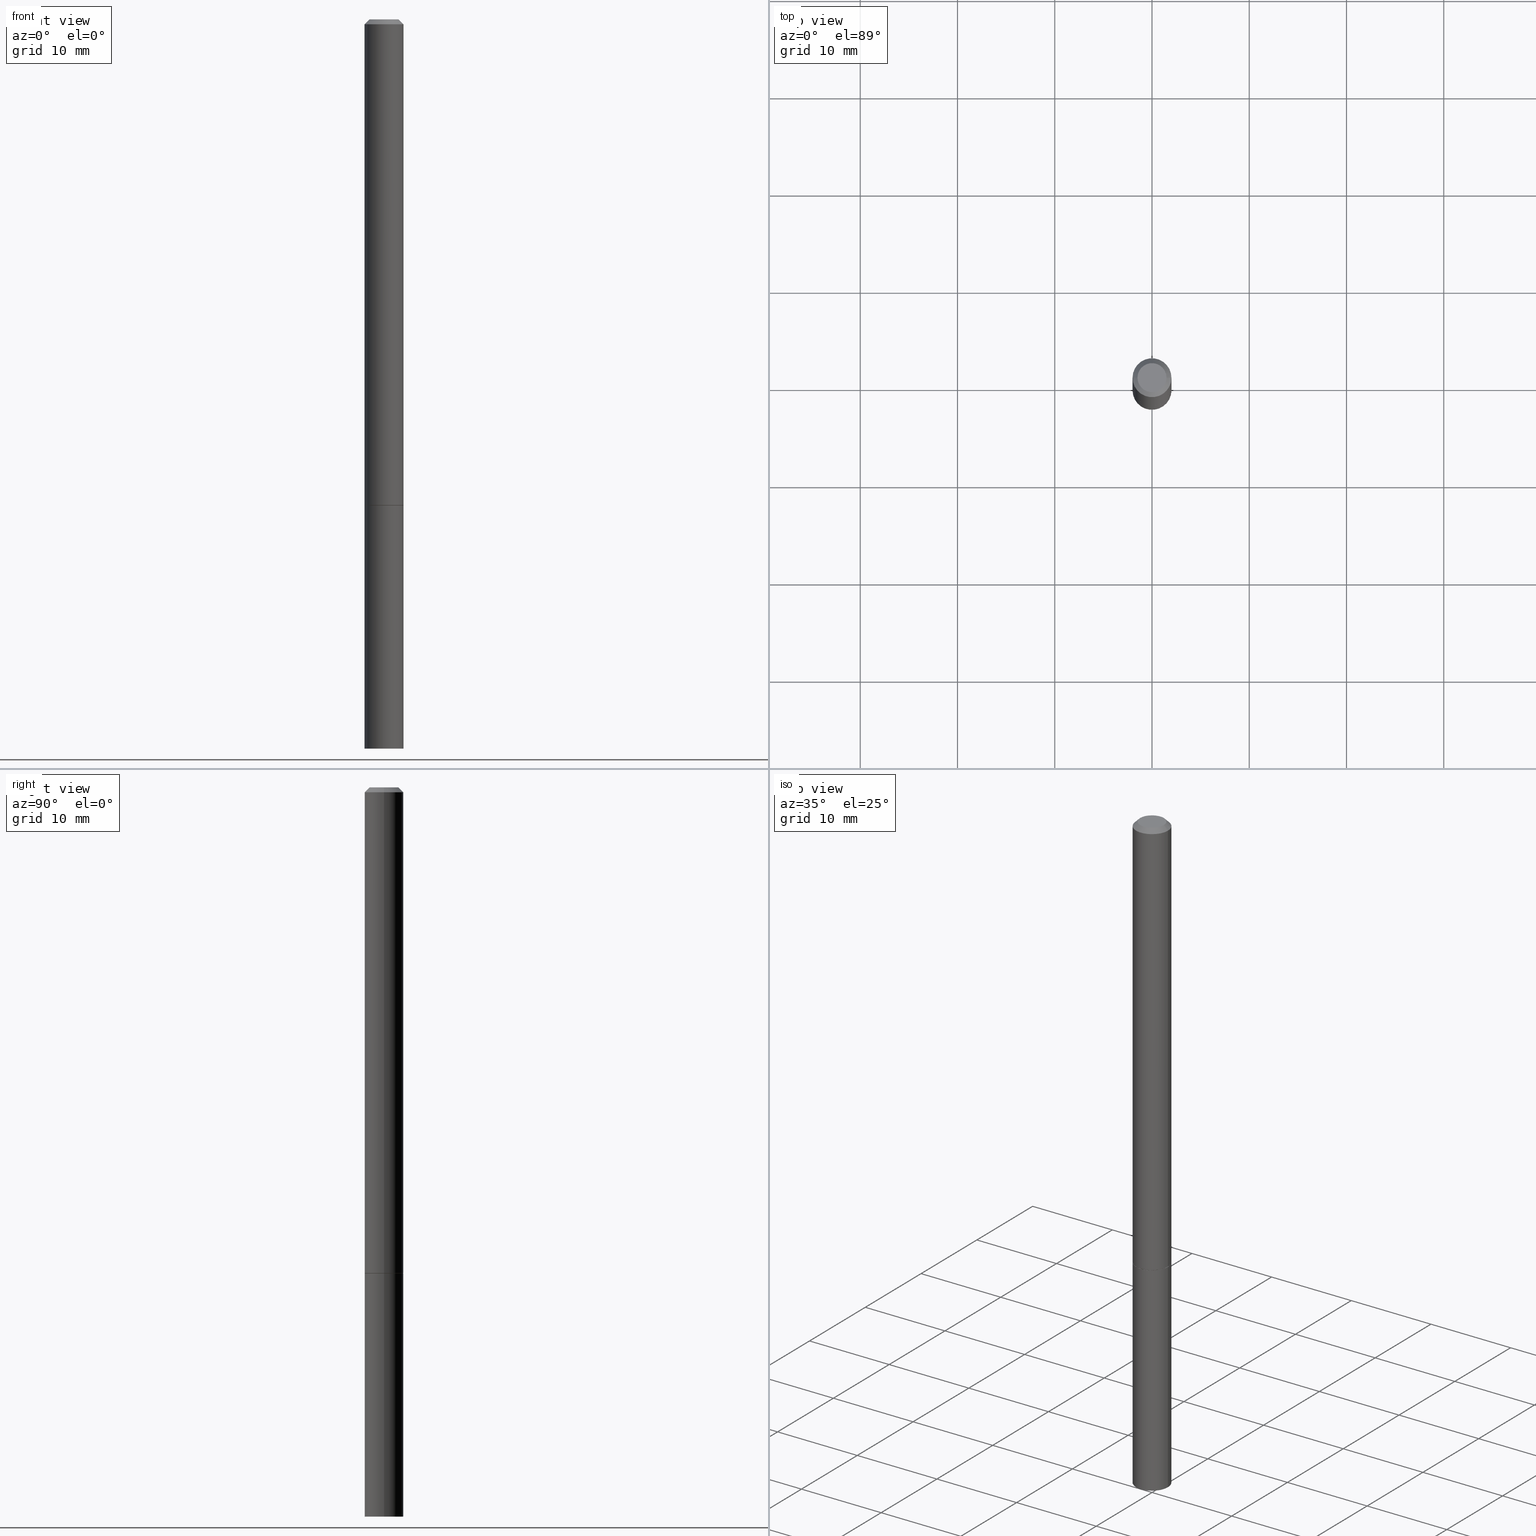
[diagram: canonical four-view strip — front | top / right | iso, engineering-drawing reading convention]
A machine part, canonical four-view strip (front | top / right | iso — engineering-drawing reading convention). The complete STEP part file that produces these views, byte-faithful:
ISO-10303-21;
HEADER;
FILE_DESCRIPTION (( 'STEP AP203' ),
    '1' );
FILE_NAME ('49389.STEP',
    '2024-02-28T18:27:34',
    ( '' ),
    ( '' ),
    'SwSTEP 2.0',
    'SolidWorks 2023',
    '' );
FILE_SCHEMA (( 'CONFIG_CONTROL_DESIGN' ));
ENDSEC;

DATA;
#1 = ORIENTED_EDGE ( 'NONE', *, *, #63, .T. ) ;
#2 = PRODUCT_DEFINITION ( 'UNKNOWN', '', #208, #248 ) ;
#3 = LOCAL_TIME ( 13, 27, 34.00000000000000000, #24 ) ;
#4 = PRODUCT ( '49389', '49389', '', ( #209 ) ) ;
#5 = LINE ( 'NONE', #341, #233 ) ;
#6 = ORIENTED_EDGE ( 'NONE', *, *, #177, .F. ) ;
#7 = DIRECTION ( 'NONE',  ( 1.000000000000000000, -6.982962677686266711E-15, 4.876176775795935793E-29 ) ) ;
#8 = DIRECTION ( 'NONE',  ( 1.000000000000000000, -6.982962677686261977E-15, 0.000000000000000000 ) ) ;
#9 = PLANE ( 'NONE',  #55 ) ;
#10 = ORIENTED_EDGE ( 'NONE', *, *, #339, .T. ) ;
#11 = CARTESIAN_POINT ( 'NONE',  ( 0.000000000000000000, 0.000000000000000000, 0.000000000000000000 ) ) ;
#12 = EDGE_LOOP ( 'NONE', ( #57, #247 ) ) ;
#13 = APPLICATION_CONTEXT ( 'configuration controlled 3d designs of mechanical parts and assemblies' ) ;
#14 = DIRECTION ( 'NONE',  ( -2.445468806185136597E-29, 3.491481338843145583E-15, 1.000000000000000000 ) ) ;
#15 = CARTESIAN_POINT ( 'NONE',  ( -0.07874999999999973688, 4.800786840909286670E-16, -0.02000000000000001776 ) ) ;
#16 = PLANE ( 'NONE',  #338 ) ;
#17 = APPROVAL_ROLE ( '' ) ;
#18 = EDGE_CURVE ( 'NONE', #108, #316, #27, .T. ) ;
#19 = AXIS2_PLACEMENT_3D ( 'NONE', #259, #112, #64 ) ;
#20 = CARTESIAN_POINT ( 'NONE',  ( -0.07874999999999987566, 5.595524044110780128E-16, -3.873661383575732186E-30 ) ) ;
#21 = LENGTH_MEASURE_WITH_UNIT ( LENGTH_MEASURE( 0.02539999999999999897 ), #58 );
#22 = CARTESIAN_POINT ( 'NONE',  ( 4.890937612370276662E-31, -6.982962677686296539E-17, -0.02000000000000001776 ) ) ;
#23 = PERSON_AND_ORGANIZATION_ROLE ( 'creator' ) ;
#24 = COORDINATED_UNIVERSAL_TIME_OFFSET ( 5, 0, .BEHIND. ) ;
#25 = AXIS2_PLACEMENT_3D ( 'NONE', #137, #293, #37 ) ;
#26 = VERTEX_POINT ( 'NONE', #65 ) ;
#27 = CIRCLE ( 'NONE', #251, 0.07875000000000000056 ) ;
#28 = DIMENSIONAL_EXPONENTS ( 1.000000000000000000, 0.000000000000000000, 0.000000000000000000, 0.000000000000000000, 0.000000000000000000, 0.000000000000000000, 0.000000000000000000 ) ;
#29 = DIRECTION ( 'NONE',  ( -2.445468806185136597E-29, 3.491481338843145583E-15, 1.000000000000000000 ) ) ;
#30 = EDGE_CURVE ( 'NONE', #349, #351, #139, .T. ) ;
#31 = DIRECTION ( 'NONE',  ( 2.438088387897960049E-29, -3.491481338843145188E-15, -1.000000000000000000 ) ) ;
#32 = DIRECTION ( 'NONE',  ( -2.445468806185136597E-29, 3.491481338843145583E-15, 1.000000000000000000 ) ) ;
#33 = SECURITY_CLASSIFICATION ( '', '', #309 ) ;
#34 = DIRECTION ( 'NONE',  ( -2.445468806185136597E-29, 3.491481338843145583E-15, 1.000000000000000000 ) ) ;
#35 = CARTESIAN_POINT ( 'NONE',  ( 4.811459876169255671E-29, -6.869489534173887122E-15, -1.967499999999999805 ) ) ;
#36 = CARTESIAN_POINT ( 'NONE',  ( 0.05874999999999978156, -5.065740507352227282E-16, 3.205406768517973136E-30 ) ) ;
#37 = DIRECTION ( 'NONE',  ( 1.000000000000000000, -6.982962677686261977E-15, 0.000000000000000000 ) ) ;
#38 = CARTESIAN_POINT ( 'NONE',  ( 4.813905344975440714E-29, -6.872981015512730918E-15, -1.968499999999999694 ) ) ;
#39 = EDGE_LOOP ( 'NONE', ( #258, #195, #312, #110 ) ) ;
#40 = DIRECTION ( 'NONE',  ( -1.000000000000000000, 6.982962677686266711E-15, 0.000000000000000000 ) ) ;
#41 = VECTOR ( 'NONE', #207, 39.37007874015748143 ) ;
#42 = DIRECTION ( 'NONE',  ( -2.445468806185136597E-29, 3.491481338843145583E-15, 1.000000000000000000 ) ) ;
#43 = DATE_TIME_ROLE ( 'classification_date' ) ;
#44 = DIRECTION ( 'NONE',  ( 1.000000000000000000, -6.982962677686265922E-15, 4.876176775795935232E-29 ) ) ;
#45 = CALENDAR_DATE ( 2024, 28, 2 ) ;
#46 = PLANE ( 'NONE',  #62 ) ;
#47 = APPLICATION_PROTOCOL_DEFINITION ( 'international standard', 'config_control_design', 1994, #300 ) ;
#48 = ORGANIZATION ( 'UNSPECIFIED', 'UNSPECIFIED', '' ) ;
#49 = DIRECTION ( 'NONE',  ( 2.445468806185136597E-29, -3.491481338843145583E-15, -1.000000000000000000 ) ) ;
#50 = PERSON_AND_ORGANIZATION_ROLE ( 'design_supplier' ) ;
#51 = CARTESIAN_POINT ( 'NONE',  ( 0.000000000000000000, 0.000000000000000000, 0.000000000000000000 ) ) ;
#52 = APPROVAL_PERSON_ORGANIZATION ( #153, #229, #189 ) ;
#53 = APPROVAL ( #303, 'UNSPECIFIED' ) ;
#54 = AXIS2_PLACEMENT_3D ( 'NONE', #205, #325, #212 ) ;
#55 = AXIS2_PLACEMENT_3D ( 'NONE', #286, #31, #350 ) ;
#56 = EDGE_CURVE ( 'NONE', #26, #343, #88, .T. ) ;
#57 = ORIENTED_EDGE ( 'NONE', *, *, #135, .F. ) ;
#58 =( LENGTH_UNIT ( ) NAMED_UNIT ( * ) SI_UNIT ( $, .METRE. ) );
#59 = ORIENTED_EDGE ( 'NONE', *, *, #123, .F. ) ;
#60 = DIRECTION ( 'NONE',  ( 1.000000000000000000, -6.982962677686265922E-15, 4.876176775795935793E-29 ) ) ;
#61 = ORIENTED_EDGE ( 'NONE', *, *, #63, .F. ) ;
#62 = AXIS2_PLACEMENT_3D ( 'NONE', #154, #132, #266 ) ;
#63 = EDGE_CURVE ( 'NONE', #340, #91, #314, .T. ) ;
#64 = DIRECTION ( 'NONE',  ( 1.000000000000000000, -6.982962677686265922E-15, 4.876176775795935232E-29 ) ) ;
#65 = CARTESIAN_POINT ( 'NONE',  ( -0.05874999999999978156, 4.451638707024976095E-16, -2.990994270918716287E-30 ) ) ;
#66 = CARTESIAN_POINT ( 'NONE',  ( 4.813905344975441835E-29, -6.872981015512731707E-15, -1.968500000000000139 ) ) ;
#67 = EDGE_LOOP ( 'NONE', ( #148, #146 ) ) ;
#68 = DIRECTION ( 'NONE',  ( 1.000000000000000000, -6.982962677686261977E-15, 0.000000000000000000 ) ) ;
#69 = DIRECTION ( 'NONE',  ( 1.000000000000000000, -6.982962677686266711E-15, 4.876176775795935793E-29 ) ) ;
#70 = CLOSED_SHELL ( 'NONE', ( #149, #94, #72, #253 ) ) ;
#71 = FACE_OUTER_BOUND ( 'NONE', #197, .T. ) ;
#72 = ADVANCED_FACE ( 'NONE', ( #304 ), #16, .F. ) ;
#73 = DIRECTION ( 'NONE',  ( 2.445468806185136597E-29, -3.491481338843145583E-15, -1.000000000000000000 ) ) ;
#74 = FACE_OUTER_BOUND ( 'NONE', #12, .T. ) ;
#75 = ADVANCED_FACE ( 'NONE', ( #243 ), #210, .T. ) ;
#76 = COORDINATED_UNIVERSAL_TIME_OFFSET ( 5, 0, .BEHIND. ) ;
#77 = CC_DESIGN_SECURITY_CLASSIFICATION ( #33, ( #208 ) ) ;
#78 = APPROVAL_DATE_TIME ( #332, #53 ) ;
#79 = EDGE_LOOP ( 'NONE', ( #61, #281 ) ) ;
#80 = AXIS2_PLACEMENT_3D ( 'NONE', #66, #114, #170 ) ;
#81 = ADVANCED_FACE ( 'NONE', ( #127 ), #307, .T. ) ;
#82 = EDGE_LOOP ( 'NONE', ( #315, #228, #118, #171 ) ) ;
#83 = ORIENTED_EDGE ( 'NONE', *, *, #336, .F. ) ;
#84 = DIRECTION ( 'NONE',  ( -2.445468806185136597E-29, 3.491481338843145583E-15, 1.000000000000000000 ) ) ;
#85 = ORIENTED_EDGE ( 'NONE', *, *, #342, .F. ) ;
#86 = PLANE ( 'NONE',  #264 ) ;
#87 = ORIENTED_EDGE ( 'NONE', *, *, #115, .T. ) ;
#88 = CIRCLE ( 'NONE', #96, 0.05874999999999978156 ) ;
#89 = VECTOR ( 'NONE', #143, 39.37007874015748143 ) ;
#90 = DIRECTION ( 'NONE',  ( 0.7071067811865464625, -7.319954787623252890E-15, -0.7071067811865485719 ) ) ;
#91 = VERTEX_POINT ( 'NONE', #236 ) ;
#92 = DIRECTION ( 'NONE',  ( -2.445468806185136877E-29, 3.491481338843145188E-15, 1.000000000000000000 ) ) ;
#93 = DIRECTION ( 'NONE',  ( -1.000000000000000000, 6.982962677686266711E-15, 0.000000000000000000 ) ) ;
#94 = ADVANCED_FACE ( 'NONE', ( #74 ), #46, .T. ) ;
#95 = FACE_OUTER_BOUND ( 'NONE', #109, .T. ) ;
#96 = AXIS2_PLACEMENT_3D ( 'NONE', #285, #29, #175 ) ;
#97 =( CONVERSION_BASED_UNIT ( 'INCH', #21 ) LENGTH_UNIT ( ) NAMED_UNIT ( #28 ) );
#98 = CONICAL_SURFACE ( 'NONE', #222, 0.07874999999999973688, 0.7853981633974468357 ) ;
#99 = CARTESIAN_POINT ( 'NONE',  ( 4.890937612370276662E-31, -6.982962677686296539E-17, -0.02000000000000001776 ) ) ;
#100 = APPROVAL_DATE_TIME ( #102, #311 ) ;
#101 = DIRECTION ( 'NONE',  ( -2.445468806185136597E-29, 3.491481338843145583E-15, 1.000000000000000000 ) ) ;
#102 = DATE_AND_TIME ( #362, #313 ) ;
#103 = FACE_OUTER_BOUND ( 'NONE', #39, .T. ) ;
#104 = DATE_AND_TIME ( #246, #3 ) ;
#105 = PERSON_AND_ORGANIZATION_ROLE ( 'creator' ) ;
#106 = ORIENTED_EDGE ( 'NONE', *, *, #123, .T. ) ;
#107 = CC_DESIGN_DATE_AND_TIME_ASSIGNMENT ( #104, #218, ( #2 ) ) ;
#108 = VERTEX_POINT ( 'NONE', #270 ) ;
#109 = EDGE_LOOP ( 'NONE', ( #178, #337, #10, #290 ) ) ;
#110 = ORIENTED_EDGE ( 'NONE', *, *, #169, .F. ) ;
#111 = CONICAL_SURFACE ( 'NONE', #191, 0.07774999999999999967, 0.7853981633972775267 ) ;
#112 = DIRECTION ( 'NONE',  ( -2.445468806185136597E-29, 3.491481338843145583E-15, 1.000000000000000000 ) ) ;
#113 = ORIENTED_EDGE ( 'NONE', *, *, #56, .T. ) ;
#114 = DIRECTION ( 'NONE',  ( -2.445468806185136597E-29, 3.491481338843145583E-15, 1.000000000000000000 ) ) ;
#115 = EDGE_CURVE ( 'NONE', #91, #108, #356, .T. ) ;
#116 = VERTEX_POINT ( 'NONE', #156 ) ;
#117 = DIRECTION ( 'NONE',  ( -2.445468806185136597E-29, 3.491481338843145583E-15, 1.000000000000000000 ) ) ;
#118 = ORIENTED_EDGE ( 'NONE', *, *, #238, .T. ) ;
#119 = VECTOR ( 'NONE', #302, 39.37007874015748143 ) ;
#120 = LINE ( 'NONE', #234, #89 ) ;
#121 = ORIENTED_EDGE ( 'NONE', *, *, #342, .T. ) ;
#122 = PERSON ( 'UNSPECIFIED', 'UNSPECIFIED', 'UNSPECIFIED', ('UNSPECIFIED'), ('UNSPECIFIED'), ('UNSPECIFIED') ) ;
#123 = EDGE_CURVE ( 'NONE', #26, #321, #239, .T. ) ;
#124 = DIRECTION ( 'NONE',  ( -2.438088387897960049E-29, 3.491481338843145188E-15, 1.000000000000000000 ) ) ;
#125 = DIRECTION ( 'NONE',  ( -1.000000000000000000, 6.982962677686265922E-15, -4.876176775795935793E-29 ) ) ;
#126 = PERSON_AND_ORGANIZATION ( #122, #48 ) ;
#127 = FACE_OUTER_BOUND ( 'NONE', #318, .T. ) ;
#128 = AXIS2_PLACEMENT_3D ( 'NONE', #144, #32, #8 ) ;
#129 = CONICAL_SURFACE ( 'NONE', #289, 0.07774999999999999967, 0.7853981633972775267 ) ;
#130 = CARTESIAN_POINT ( 'NONE',  ( 0.07875000000000000056, -1.085955440820383187E-14, -2.952799999999999869 ) ) ;
#131 = PERSON_AND_ORGANIZATION ( #122, #48 ) ;
#132 = DIRECTION ( 'NONE',  ( 2.438088387897960049E-29, -3.491481338843145188E-15, -1.000000000000000000 ) ) ;
#133 = DIRECTION ( 'NONE',  ( 0.000000000000000000, 0.000000000000000000, 1.000000000000000000 ) ) ;
#134 = EDGE_CURVE ( 'NONE', #108, #321, #159, .T. ) ;
#135 = EDGE_CURVE ( 'NONE', #140, #254, #215, .T. ) ;
#136 = LOCAL_TIME ( 13, 27, 34.00000000000000000, #277 ) ;
#137 = CARTESIAN_POINT ( 'NONE',  ( 4.813905344975441835E-29, -6.872981015512731707E-15, -1.968500000000000139 ) ) ;
#138 = CYLINDRICAL_SURFACE ( 'NONE', #19, 0.07875000000000000056 ) ;
#139 = CIRCLE ( 'NONE', #128, 0.07875000000000000056 ) ;
#140 = VERTEX_POINT ( 'NONE', #130 ) ;
#141 = CC_DESIGN_APPROVAL ( #311, ( #2 ) ) ;
#142 = CC_DESIGN_APPROVAL ( #229, ( #33 ) ) ;
#143 = DIRECTION ( 'NONE',  ( -2.445468806185136877E-29, 3.491481338843145188E-15, 1.000000000000000000 ) ) ;
#144 = CARTESIAN_POINT ( 'NONE',  ( 4.813905344975440714E-29, -6.872981015512730918E-15, -1.968499999999999694 ) ) ;
#145 = DIRECTION ( 'NONE',  ( -2.445468806185136597E-29, 3.491481338843145583E-15, 1.000000000000000000 ) ) ;
#146 = ORIENTED_EDGE ( 'NONE', *, *, #249, .T. ) ;
#147 = CARTESIAN_POINT ( 'NONE',  ( 4.813905344975441835E-29, -6.872981015512731707E-15, -1.968500000000000139 ) ) ;
#148 = ORIENTED_EDGE ( 'NONE', *, *, #30, .T. ) ;
#149 = ADVANCED_FACE ( 'NONE', ( #103 ), #241, .T. ) ;
#150 = AXIS2_PLACEMENT_3D ( 'NONE', #324, #145, #68 ) ;
#151 = CARTESIAN_POINT ( 'NONE',  ( 0.07874999999999973688, -6.100938441013694129E-16, -0.02000000000000001776 ) ) ;
#152 = DIRECTION ( 'NONE',  ( -2.445468806185136597E-29, 3.491481338843145583E-15, 1.000000000000000000 ) ) ;
#153 = PERSON_AND_ORGANIZATION ( #122, #48 ) ;
#154 = CARTESIAN_POINT ( 'NONE',  ( 5.499083108678655265E-16, 0.07874999999998968936, -2.952800000000000313 ) ) ;
#155 = PERSON_AND_ORGANIZATION_ROLE ( 'classification_officer' ) ;
#156 = CARTESIAN_POINT ( 'NONE',  ( 0.07874999999999973688, -6.100938441013694129E-16, -0.02000000000000001776 ) ) ;
#157 = LOCAL_TIME ( 13, 27, 34.00000000000000000, #364 ) ;
#158 = PERSON_AND_ORGANIZATION_ROLE ( 'design_owner' ) ;
#159 = LINE ( 'NONE', #20, #333 ) ;
#160 = PERSON_AND_ORGANIZATION ( #122, #48 ) ;
#161 = ADVANCED_FACE ( 'NONE', ( #95 ), #276, .T. ) ;
#162 = MANIFOLD_SOLID_BREP ( 'Body-Move/Copy2[1]', #70 ) ;
#163 = AXIS2_PLACEMENT_3D ( 'NONE', #51, #133, #244 ) ;
#164 = PRODUCT_RELATED_PRODUCT_CATEGORY ( 'detail', '', ( #4 ) ) ;
#165 = SHAPE_DEFINITION_REPRESENTATION ( #173, #271 ) ;
#166 = DIRECTION ( 'NONE',  ( 1.000000000000000000, -6.982962677686261977E-15, 0.000000000000000000 ) ) ;
#167 = CARTESIAN_POINT ( 'NONE',  ( 4.813905344975441835E-29, -6.872981015512731707E-15, -1.968500000000000139 ) ) ;
#168 = ORIENTED_EDGE ( 'NONE', *, *, #336, .T. ) ;
#169 = EDGE_CURVE ( 'NONE', #140, #349, #180, .T. ) ;
#170 = DIRECTION ( 'NONE',  ( 1.000000000000000000, -6.982962677686261977E-15, 0.000000000000000000 ) ) ;
#171 = ORIENTED_EDGE ( 'NONE', *, *, #18, .F. ) ;
#172 = VECTOR ( 'NONE', #265, 39.37007874015748143 ) ;
#173 = PRODUCT_DEFINITION_SHAPE ( 'NONE', 'NONE',  #2 ) ;
#174 = DIRECTION ( 'NONE',  ( 1.000000000000000000, -6.982962677686261977E-15, 0.000000000000000000 ) ) ;
#175 = DIRECTION ( 'NONE',  ( 1.000000000000000000, -6.982962677686266711E-15, 4.876176775795935793E-29 ) ) ;
#176 = FACE_OUTER_BOUND ( 'NONE', #256, .T. ) ;
#177 = EDGE_CURVE ( 'NONE', #116, #321, #219, .T. ) ;
#178 = ORIENTED_EDGE ( 'NONE', *, *, #134, .F. ) ;
#179 = CARTESIAN_POINT ( 'NONE',  ( 4.813905344975441835E-29, -6.872981015512731707E-15, -1.968500000000000139 ) ) ;
#180 = LINE ( 'NONE', #297, #41 ) ;
#181 = CIRCLE ( 'NONE', #245, 0.07875000000000000056 ) ;
#182 = CARTESIAN_POINT ( 'NONE',  ( 4.890937612370276662E-31, -6.982962677686296539E-17, -0.02000000000000001776 ) ) ;
#183 = PERSON_AND_ORGANIZATION ( #122, #48 ) ;
#184 = CARTESIAN_POINT ( 'NONE',  ( 5.499083108678415648E-16, 0.07874999999999311717, -1.968500000000000139 ) ) ;
#185 = ADVANCED_FACE ( 'NONE', ( #71 ), #98, .T. ) ;
#186 = DATE_AND_TIME ( #45, #136 ) ;
#187 = CARTESIAN_POINT ( 'NONE',  ( -0.07774999999999999967, -6.320534038459253914E-15, -1.968500000000000139 ) ) ;
#188 = CC_DESIGN_APPROVAL ( #53, ( #208 ) ) ;
#189 = APPROVAL_ROLE ( '' ) ;
#190 = EDGE_CURVE ( 'NONE', #91, #340, #273, .T. ) ;
#191 = AXIS2_PLACEMENT_3D ( 'NONE', #167, #117, #227 ) ;
#192 = CC_DESIGN_PERSON_AND_ORGANIZATION_ASSIGNMENT ( #183, #23, ( #2 ) ) ;
#193 =( GEOMETRIC_REPRESENTATION_CONTEXT ( 3 ) GLOBAL_UNCERTAINTY_ASSIGNED_CONTEXT ( ( #226 ) ) GLOBAL_UNIT_ASSIGNED_CONTEXT ( ( #97, #242, #211 ) ) REPRESENTATION_CONTEXT ( 'NONE', 'WORKASPACE' ) );
#194 = ORIENTED_EDGE ( 'NONE', *, *, #275, .T. ) ;
#195 = ORIENTED_EDGE ( 'NONE', *, *, #284, .T. ) ;
#196 = DIRECTION ( 'NONE',  ( -2.445468806185136597E-29, 3.491481338843145583E-15, 1.000000000000000000 ) ) ;
#197 = EDGE_LOOP ( 'NONE', ( #83, #225, #250, #59 ) ) ;
#198 = LINE ( 'NONE', #202, #172 ) ;
#199 = ORIENTED_EDGE ( 'NONE', *, *, #339, .F. ) ;
#200 = APPROVAL_PERSON_ORGANIZATION ( #131, #311, #17 ) ;
#201 = CC_DESIGN_PERSON_AND_ORGANIZATION_ASSIGNMENT ( #160, #155, ( #33 ) ) ;
#202 = CARTESIAN_POINT ( 'NONE',  ( 0.07774999999999999967, -7.415906363702839039E-15, -1.968500000000000139 ) ) ;
#203 = ORIENTED_EDGE ( 'NONE', *, *, #284, .F. ) ;
#204 = CARTESIAN_POINT ( 'NONE',  ( -0.07875000000000000056, -8.031761152013305527E-15, -1.968499999999999694 ) ) ;
#205 = CARTESIAN_POINT ( 'NONE',  ( 0.000000000000000000, 0.000000000000000000, 0.000000000000000000 ) ) ;
#206 = CARTESIAN_POINT ( 'NONE',  ( 4.890937612370276662E-31, -6.982962677686296539E-17, -0.02000000000000001776 ) ) ;
#207 = DIRECTION ( 'NONE',  ( -2.445468806185136877E-29, 3.491481338843145188E-15, 1.000000000000000000 ) ) ;
#208 = PRODUCT_DEFINITION_FORMATION_WITH_SPECIFIED_SOURCE ( 'ANY', '', #4, .NOT_KNOWN. ) ;
#209 = MECHANICAL_CONTEXT ( 'NONE', #13, 'mechanical' ) ;
#210 = CYLINDRICAL_SURFACE ( 'NONE', #54, 0.07874999999999987566 ) ;
#211 =( NAMED_UNIT ( * ) SI_UNIT ( $, .STERADIAN. ) SOLID_ANGLE_UNIT ( ) );
#212 = DIRECTION ( 'NONE',  ( 1.000000000000000000, -6.982962677686266711E-15, 4.876176775795935793E-29 ) ) ;
#213 = APPROVAL_STATUS ( 'not_yet_approved' ) ;
#214 = CARTESIAN_POINT ( 'NONE',  ( 0.000000000000000000, 0.000000000000000000, 0.000000000000000000 ) ) ;
#215 = CIRCLE ( 'NONE', #262, 0.07875000000000000056 ) ;
#216 = EDGE_CURVE ( 'NONE', #343, #116, #296, .T. ) ;
#217 = AXIS2_PLACEMENT_3D ( 'NONE', #306, #269, #44 ) ;
#218 = DATE_TIME_ROLE ( 'creation_date' ) ;
#219 = CIRCLE ( 'NONE', #355, 0.07874999999999973688 ) ;
#220 = CC_DESIGN_PERSON_AND_ORGANIZATION_ASSIGNMENT ( #301, #50, ( #208 ) ) ;
#221 = ADVANCED_FACE ( 'NONE', ( #347 ), #9, .F. ) ;
#222 = AXIS2_PLACEMENT_3D ( 'NONE', #182, #73, #40 ) ;
#223 = ORIENTED_EDGE ( 'NONE', *, *, #169, .T. ) ;
#224 = CARTESIAN_POINT ( 'NONE',  ( -0.07875000000000000056, -8.031761152013305527E-15, -2.952799999999999869 ) ) ;
#225 = ORIENTED_EDGE ( 'NONE', *, *, #216, .T. ) ;
#226 = UNCERTAINTY_MEASURE_WITH_UNIT (LENGTH_MEASURE( 1.000000000000000082E-05 ), #97, 'distance_accuracy_value', 'NONE');
#227 = DIRECTION ( 'NONE',  ( 1.000000000000000000, -6.982962677686261977E-15, 0.000000000000000000 ) ) ;
#228 = ORIENTED_EDGE ( 'NONE', *, *, #190, .T. ) ;
#229 = APPROVAL ( #213, 'UNSPECIFIED' ) ;
#230 = CARTESIAN_POINT ( 'NONE',  ( 0.07875000000000000056, -7.422889326380523475E-15, -1.968499999999999694 ) ) ;
#231 = VECTOR ( 'NONE', #329, 39.37007874015748143 ) ;
#232 = ORIENTED_EDGE ( 'NONE', *, *, #363, .T. ) ;
#233 = VECTOR ( 'NONE', #92, 39.37007874015748143 ) ;
#234 = CARTESIAN_POINT ( 'NONE',  ( 0.07874999999999987566, -5.499083108677926554E-16, 3.839989210939293411E-30 ) ) ;
#235 = ORIENTED_EDGE ( 'NONE', *, *, #134, .T. ) ;
#236 = CARTESIAN_POINT ( 'NONE',  ( -0.07774999999999999967, -6.315235584111030723E-15, -1.968500000000000139 ) ) ;
#237 = COORDINATED_UNIVERSAL_TIME_OFFSET ( 5, 0, .BEHIND. ) ;
#238 = EDGE_CURVE ( 'NONE', #340, #316, #198, .T. ) ;
#239 = LINE ( 'NONE', #15, #119 ) ;
#240 = VECTOR ( 'NONE', #90, 39.37007874015748143 ) ;
#241 = CYLINDRICAL_SURFACE ( 'NONE', #217, 0.07875000000000000056 ) ;
#242 =( NAMED_UNIT ( * ) PLANE_ANGLE_UNIT ( ) SI_UNIT ( $, .RADIAN. ) );
#243 = FACE_OUTER_BOUND ( 'NONE', #310, .T. ) ;
#244 = DIRECTION ( 'NONE',  ( 1.000000000000000000, 0.000000000000000000, 0.000000000000000000 ) ) ;
#245 = AXIS2_PLACEMENT_3D ( 'NONE', #38, #196, #291 ) ;
#246 = CALENDAR_DATE ( 2024, 28, 2 ) ;
#247 = ORIENTED_EDGE ( 'NONE', *, *, #363, .F. ) ;
#248 = DESIGN_CONTEXT ( 'detailed design', #300, 'design' ) ;
#249 = EDGE_CURVE ( 'NONE', #351, #349, #181, .T. ) ;
#250 = ORIENTED_EDGE ( 'NONE', *, *, #177, .T. ) ;
#251 = AXIS2_PLACEMENT_3D ( 'NONE', #35, #295, #166 ) ;
#252 = LOCAL_TIME ( 13, 27, 34.00000000000000000, #76 ) ;
#253 = ADVANCED_FACE ( 'NONE', ( #176 ), #138, .T. ) ;
#254 = VERTEX_POINT ( 'NONE', #224 ) ;
#255 = FACE_OUTER_BOUND ( 'NONE', #287, .T. ) ;
#256 = EDGE_LOOP ( 'NONE', ( #203, #232, #223, #263 ) ) ;
#257 = CARTESIAN_POINT ( 'NONE',  ( 0.07774999999999999967, -7.415906363702839039E-15, -1.968500000000000139 ) ) ;
#258 = ORIENTED_EDGE ( 'NONE', *, *, #135, .T. ) ;
#259 = CARTESIAN_POINT ( 'NONE',  ( 0.000000000000000000, 0.000000000000000000, 0.000000000000000000 ) ) ;
#260 = EDGE_LOOP ( 'NONE', ( #113, #168 ) ) ;
#261 = DIRECTION ( 'NONE',  ( 1.000000000000000000, -6.982962677686261977E-15, 0.000000000000000000 ) ) ;
#262 = AXIS2_PLACEMENT_3D ( 'NONE', #358, #101, #353 ) ;
#263 = ORIENTED_EDGE ( 'NONE', *, *, #249, .F. ) ;
#264 = AXIS2_PLACEMENT_3D ( 'NONE', #147, #124, #60 ) ;
#265 = DIRECTION ( 'NONE',  ( 0.7071067811864267805, -2.468850131080992517E-15, 0.7071067811866682540 ) ) ;
#266 = DIRECTION ( 'NONE',  ( -1.000000000000000000, 6.982962677686265922E-15, -4.876176775795935793E-29 ) ) ;
#267 = ADVANCED_FACE ( 'NONE', ( #322 ), #111, .T. ) ;
#268 = PERSON_AND_ORGANIZATION ( #122, #48 ) ;
#269 = DIRECTION ( 'NONE',  ( -2.445468806185136597E-29, 3.491481338843145583E-15, 1.000000000000000000 ) ) ;
#270 = CARTESIAN_POINT ( 'NONE',  ( -0.07875000000000000056, -2.910107176064290492E-15, -1.967499999999999805 ) ) ;
#271 = ADVANCED_BREP_SHAPE_REPRESENTATION ( '49389', ( #162, #292, #163 ), #193 ) ;
#272 = CLOSED_SHELL ( 'NONE', ( #280, #75, #185, #81, #161, #267, #298, #221 ) ) ;
#273 = CIRCLE ( 'NONE', #80, 0.07774999999999999967 ) ;
#274 = APPROVAL_ROLE ( '' ) ;
#275 = EDGE_CURVE ( 'NONE', #321, #116, #334, .T. ) ;
#276 = CYLINDRICAL_SURFACE ( 'NONE', #328, 0.07874999999999987566 ) ;
#277 = COORDINATED_UNIVERSAL_TIME_OFFSET ( 5, 0, .BEHIND. ) ;
#278 = APPLICATION_PROTOCOL_DEFINITION ( 'international standard', 'config_control_design', 1994, #13 ) ;
#279 = CIRCLE ( 'NONE', #299, 0.07875000000000000056 ) ;
#280 = ADVANCED_FACE ( 'NONE', ( #255 ), #129, .T. ) ;
#281 = ORIENTED_EDGE ( 'NONE', *, *, #190, .F. ) ;
#282 = APPROVAL_DATE_TIME ( #186, #229 ) ;
#283 = CIRCLE ( 'NONE', #320, 0.05874999999999978156 ) ;
#284 = EDGE_CURVE ( 'NONE', #254, #351, #5, .T. ) ;
#285 = CARTESIAN_POINT ( 'NONE',  ( 0.000000000000000000, 0.000000000000000000, 0.000000000000000000 ) ) ;
#286 = CARTESIAN_POINT ( 'NONE',  ( 4.102490573140666014E-16, 0.05874999999999978156, -2.051245286570340649E-16 ) ) ;
#287 = EDGE_LOOP ( 'NONE', ( #1, #87, #85, #365 ) ) ;
#288 = CARTESIAN_POINT ( 'NONE',  ( 0.07875000000000000056, -7.419397845041680468E-15, -1.967499999999999805 ) ) ;
#289 = AXIS2_PLACEMENT_3D ( 'NONE', #179, #14, #261 ) ;
#290 = ORIENTED_EDGE ( 'NONE', *, *, #275, .F. ) ;
#291 = DIRECTION ( 'NONE',  ( 1.000000000000000000, -6.982962677686261977E-15, 0.000000000000000000 ) ) ;
#292 = MANIFOLD_SOLID_BREP ( 'Body-Move/Copy2[2]', #272 ) ;
#293 = DIRECTION ( 'NONE',  ( -2.445468806185136597E-29, 3.491481338843145583E-15, 1.000000000000000000 ) ) ;
#294 = DIRECTION ( 'NONE',  ( 1.000000000000000000, -6.982962677686266711E-15, 0.000000000000000000 ) ) ;
#295 = DIRECTION ( 'NONE',  ( -2.445468806185136597E-29, 3.491481338843145583E-15, 1.000000000000000000 ) ) ;
#296 = LINE ( 'NONE', #151, #240 ) ;
#297 = CARTESIAN_POINT ( 'NONE',  ( 0.07875000000000000056, -5.499083108677934443E-16, 3.839989210939299016E-30 ) ) ;
#298 = ADVANCED_FACE ( 'NONE', ( #317 ), #86, .F. ) ;
#299 = AXIS2_PLACEMENT_3D ( 'NONE', #344, #319, #174 ) ;
#300 = APPLICATION_CONTEXT ( 'configuration controlled 3d designs of mechanical parts and assemblies' ) ;
#301 = PERSON_AND_ORGANIZATION ( #122, #48 ) ;
#302 = DIRECTION ( 'NONE',  ( -0.7071067811865464625, 2.468850131082245622E-15, -0.7071067811865485719 ) ) ;
#303 = APPROVAL_STATUS ( 'not_yet_approved' ) ;
#304 = FACE_OUTER_BOUND ( 'NONE', #67, .T. ) ;
#305 = CC_DESIGN_PERSON_AND_ORGANIZATION_ASSIGNMENT ( #126, #158, ( #4 ) ) ;
#306 = CARTESIAN_POINT ( 'NONE',  ( 0.000000000000000000, 0.000000000000000000, 0.000000000000000000 ) ) ;
#307 = CONICAL_SURFACE ( 'NONE', #346, 0.07874999999999973688, 0.7853981633974468357 ) ;
#308 = CIRCLE ( 'NONE', #150, 0.07875000000000000056 ) ;
#309 = SECURITY_CLASSIFICATION_LEVEL ( 'unclassified' ) ;
#310 = EDGE_LOOP ( 'NONE', ( #121, #235, #6, #199 ) ) ;
#311 = APPROVAL ( #354, 'UNSPECIFIED' ) ;
#312 = ORIENTED_EDGE ( 'NONE', *, *, #30, .F. ) ;
#313 = LOCAL_TIME ( 13, 27, 34.00000000000000000, #237 ) ;
#314 = CIRCLE ( 'NONE', #25, 0.07774999999999999967 ) ;
#315 = ORIENTED_EDGE ( 'NONE', *, *, #115, .F. ) ;
#316 = VERTEX_POINT ( 'NONE', #288 ) ;
#317 = FACE_OUTER_BOUND ( 'NONE', #79, .T. ) ;
#318 = EDGE_LOOP ( 'NONE', ( #345, #323, #106, #194 ) ) ;
#319 = DIRECTION ( 'NONE',  ( -2.445468806185136597E-29, 3.491481338843145583E-15, 1.000000000000000000 ) ) ;
#320 = AXIS2_PLACEMENT_3D ( 'NONE', #11, #34, #7 ) ;
#321 = VERTEX_POINT ( 'NONE', #352 ) ;
#322 = FACE_OUTER_BOUND ( 'NONE', #82, .T. ) ;
#323 = ORIENTED_EDGE ( 'NONE', *, *, #56, .F. ) ;
#324 = CARTESIAN_POINT ( 'NONE',  ( 7.220980290903470182E-29, -1.030964609733603853E-14, -2.952799999999999869 ) ) ;
#325 = DIRECTION ( 'NONE',  ( -2.445468806185136597E-29, 3.491481338843145583E-15, 1.000000000000000000 ) ) ;
#326 = CALENDAR_DATE ( 2024, 28, 2 ) ;
#327 = DIRECTION ( 'NONE',  ( 1.000000000000000000, -6.982962677686266711E-15, 0.000000000000000000 ) ) ;
#328 = AXIS2_PLACEMENT_3D ( 'NONE', #214, #42, #69 ) ;
#329 = DIRECTION ( 'NONE',  ( -0.7071067811864267805, 7.493145998869918709E-15, 0.7071067811866682540 ) ) ;
#330 = CC_DESIGN_DATE_AND_TIME_ASSIGNMENT ( #360, #43, ( #33 ) ) ;
#331 = DIRECTION ( 'NONE',  ( 2.438088387897960049E-29, -3.491481338843145188E-15, -1.000000000000000000 ) ) ;
#332 = DATE_AND_TIME ( #357, #157 ) ;
#333 = VECTOR ( 'NONE', #361, 39.37007874015748143 ) ;
#334 = CIRCLE ( 'NONE', #366, 0.07874999999999973688 ) ;
#335 = PERSON_AND_ORGANIZATION ( #122, #48 ) ;
#336 = EDGE_CURVE ( 'NONE', #343, #26, #283, .T. ) ;
#337 = ORIENTED_EDGE ( 'NONE', *, *, #18, .T. ) ;
#338 = AXIS2_PLACEMENT_3D ( 'NONE', #184, #331, #125 ) ;
#339 = EDGE_CURVE ( 'NONE', #316, #116, #120, .T. ) ;
#340 = VERTEX_POINT ( 'NONE', #257 ) ;
#341 = CARTESIAN_POINT ( 'NONE',  ( -0.07875000000000000056, 5.595524044110789003E-16, -3.873661383575737792E-30 ) ) ;
#342 = EDGE_CURVE ( 'NONE', #316, #108, #279, .T. ) ;
#343 = VERTEX_POINT ( 'NONE', #36 ) ;
#344 = CARTESIAN_POINT ( 'NONE',  ( 4.811459876169255671E-29, -6.869489534173887122E-15, -1.967499999999999805 ) ) ;
#345 = ORIENTED_EDGE ( 'NONE', *, *, #216, .F. ) ;
#346 = AXIS2_PLACEMENT_3D ( 'NONE', #22, #49, #93 ) ;
#347 = FACE_OUTER_BOUND ( 'NONE', #260, .T. ) ;
#348 = APPROVAL_PERSON_ORGANIZATION ( #335, #53, #274 ) ;
#349 = VERTEX_POINT ( 'NONE', #230 ) ;
#350 = DIRECTION ( 'NONE',  ( -1.000000000000000000, 6.982962677686265922E-15, -4.876176775795935793E-29 ) ) ;
#351 = VERTEX_POINT ( 'NONE', #204 ) ;
#352 = CARTESIAN_POINT ( 'NONE',  ( -0.07874999999999973688, 4.800786840909286670E-16, -0.02000000000000001776 ) ) ;
#353 = DIRECTION ( 'NONE',  ( 1.000000000000000000, -6.982962677686261977E-15, 0.000000000000000000 ) ) ;
#354 = APPROVAL_STATUS ( 'not_yet_approved' ) ;
#355 = AXIS2_PLACEMENT_3D ( 'NONE', #99, #152, #327 ) ;
#356 = LINE ( 'NONE', #187, #231 ) ;
#357 = CALENDAR_DATE ( 2024, 28, 2 ) ;
#358 = CARTESIAN_POINT ( 'NONE',  ( 7.220980290903470182E-29, -1.030964609733603853E-14, -2.952799999999999869 ) ) ;
#359 = CC_DESIGN_PERSON_AND_ORGANIZATION_ASSIGNMENT ( #268, #105, ( #208 ) ) ;
#360 = DATE_AND_TIME ( #326, #252 ) ;
#361 = DIRECTION ( 'NONE',  ( -2.445468806185136877E-29, 3.491481338843145188E-15, 1.000000000000000000 ) ) ;
#362 = CALENDAR_DATE ( 2024, 28, 2 ) ;
#363 = EDGE_CURVE ( 'NONE', #254, #140, #308, .T. ) ;
#364 = COORDINATED_UNIVERSAL_TIME_OFFSET ( 5, 0, .BEHIND. ) ;
#365 = ORIENTED_EDGE ( 'NONE', *, *, #238, .F. ) ;
#366 = AXIS2_PLACEMENT_3D ( 'NONE', #206, #84, #294 ) ;
ENDSEC;
END-ISO-10303-21;
